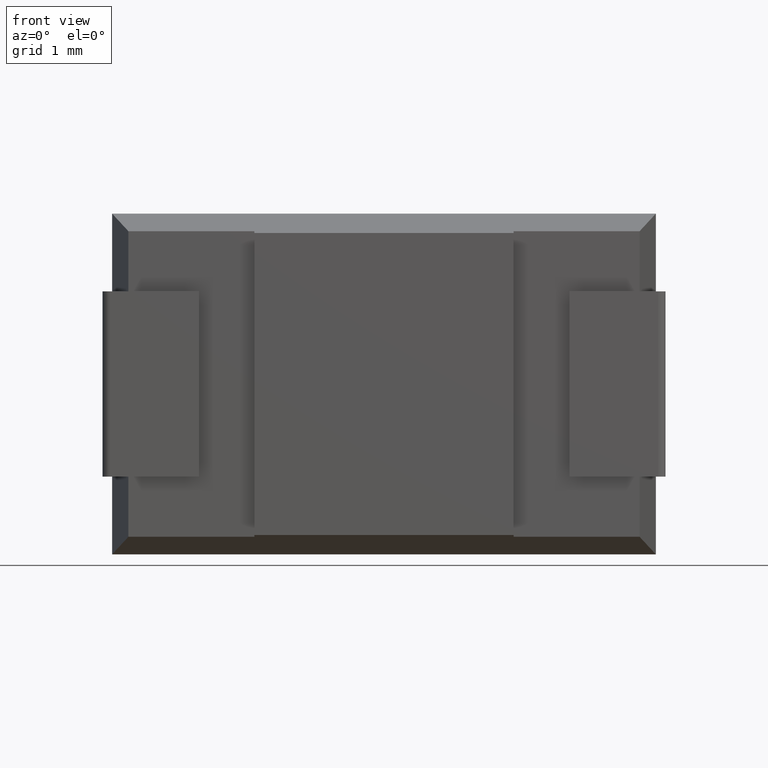
[diagram: clean part render]
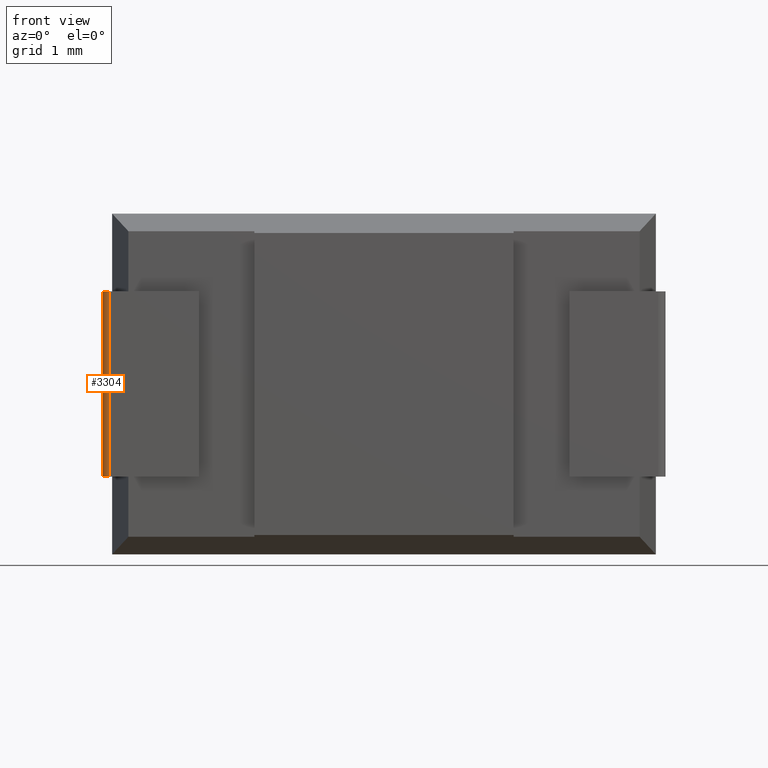
[diagram: same view with one face highlighted and labeled with its STEP entity id]
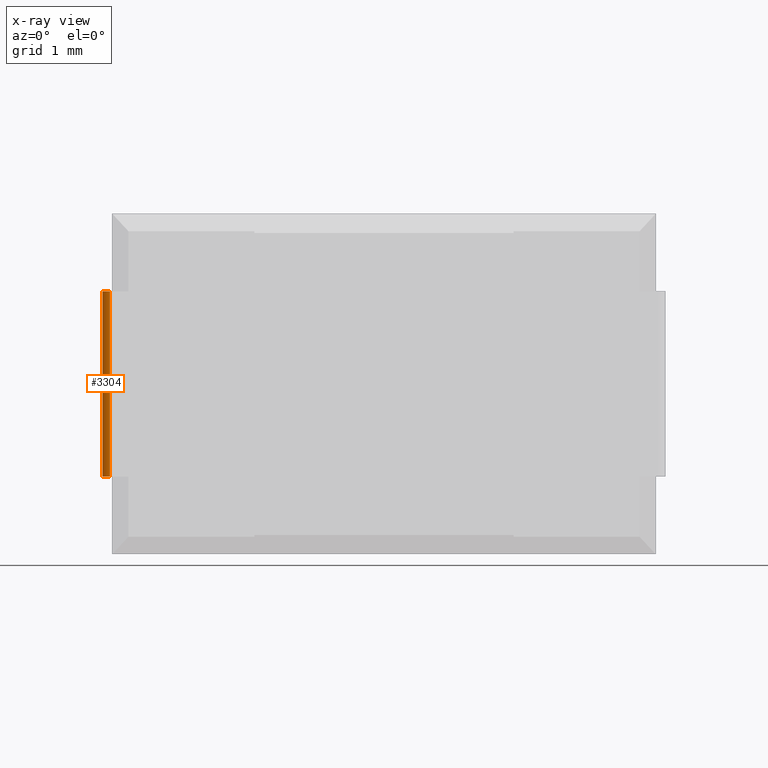
[diagram: x-ray of the same camera — body ghosted, the highlighted face saturated]
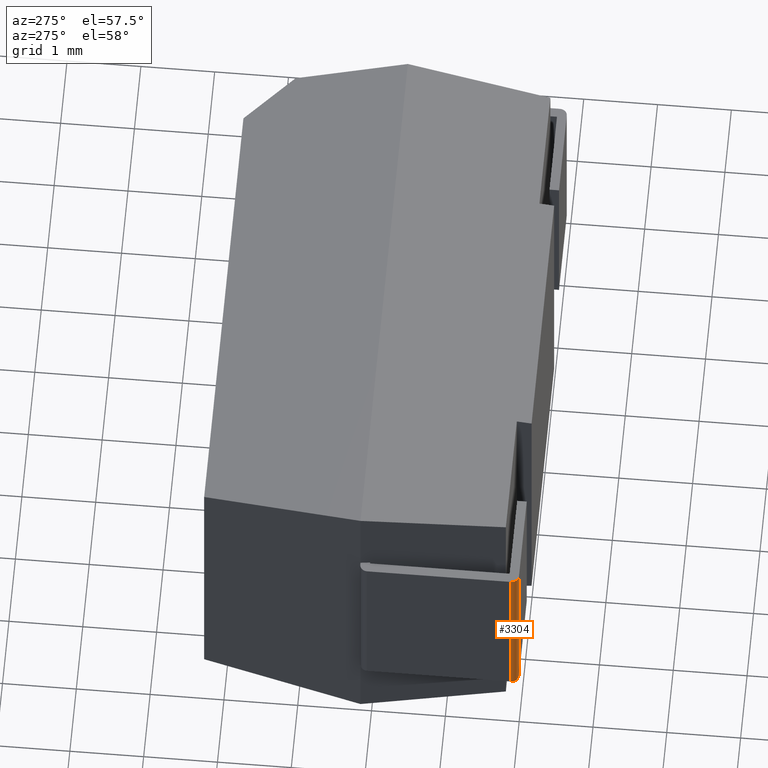
[diagram: same view with one face highlighted and labeled with its STEP entity id]
A machine part, front view. The second image highlights one B-rep face of the part: STEP entity #3304.
The next image is the same camera in x-ray: the body ghosted, the highlighted face saturated — about 0% of this face is hidden behind the body in this view.
A second angle (auxiliary view) of the same face is appended — the face is thin or edge-on in the first view.
In plain terms, the highlighted cylindrical surface (edge-blend (fillet) strip) has radius 0.1 mm, axis along (0, 0, -1).
Its self-contained STEP definition (entity closure, byte-faithful):
#3 = VERTEX_POINT ( 'NONE', #552 ) ;
#206 = VECTOR ( 'NONE', #2019, 1000.000000000000000 ) ;
#248 = DIRECTION ( 'NONE',  ( 0.000000000000000000, 0.000000000000000000, -1.000000000000000000 ) ) ;
#259 = EDGE_CURVE ( 'NONE', #2362, #3725, #2366, .T. ) ;
#284 = EDGE_LOOP ( 'NONE', ( #3554, #2536, #3196, #1512 ) ) ;
#302 = DIRECTION ( 'NONE',  ( 0.000000000000000000, 0.000000000000000000, -1.000000000000000000 ) ) ;
#336 = EDGE_CURVE ( 'NONE', #659, #3, #1726, .T. ) ;
#403 = AXIS2_PLACEMENT_3D ( 'NONE', #1685, #2276, #1091 ) ;
#495 = EDGE_CURVE ( 'NONE', #3725, #659, #1696, .T. ) ;
#552 = CARTESIAN_POINT ( 'NONE',  ( -0.02999999999999998501, 3.469446951953614189E-15, -3.549999999999999822 ) ) ;
#628 = CARTESIAN_POINT ( 'NONE',  ( -0.02999999999999998501, 3.469446951953614189E-15, 0.000000000000000000 ) ) ;
#630 = FACE_OUTER_BOUND ( 'NONE', #284, .T. ) ;
#659 = VERTEX_POINT ( 'NONE', #3395 ) ;
#847 = CARTESIAN_POINT ( 'NONE',  ( -0.1299999999999999767, 0.1000000000000032946, -1.049999999999999822 ) ) ;
#1091 = DIRECTION ( 'NONE',  ( 1.000000000000000000, 0.000000000000000000, 0.000000000000000000 ) ) ;
#1172 = CARTESIAN_POINT ( 'NONE',  ( -0.1299999999999999767, 0.1000000000000034750, 0.000000000000000000 ) ) ;
#1175 = CARTESIAN_POINT ( 'NONE',  ( -0.02999999999999998501, 0.1000000000000034750, 0.000000000000000000 ) ) ;
#1401 = CARTESIAN_POINT ( 'NONE',  ( -0.02999999999999998501, 0.1000000000000034750, -3.550000000000006928 ) ) ;
#1512 = ORIENTED_EDGE ( 'NONE', *, *, #336, .F. ) ;
#1558 = VECTOR ( 'NONE', #248, 1000.000000000000000 ) ;
#1676 = CIRCLE ( 'NONE', #2857, 0.1000000000000000056 ) ;
#1685 = CARTESIAN_POINT ( 'NONE',  ( -0.02999999999999998501, 0.1000000000000034750, -1.049999999999999822 ) ) ;
#1696 = CIRCLE ( 'NONE', #403, 0.1000000000000000056 ) ;
#1726 = LINE ( 'NONE', #628, #1558 ) ;
#2019 = DIRECTION ( 'NONE',  ( -0.000000000000000000, -0.000000000000000000, 1.000000000000000000 ) ) ;
#2179 = AXIS2_PLACEMENT_3D ( 'NONE', #1175, #302, #3530 ) ;
#2276 = DIRECTION ( 'NONE',  ( -0.000000000000000000, 0.000000000000000000, 1.000000000000000000 ) ) ;
#2362 = VERTEX_POINT ( 'NONE', #3034 ) ;
#2366 = LINE ( 'NONE', #1172, #206 ) ;
#2368 = CYLINDRICAL_SURFACE ( 'NONE', #2179, 0.1000000000000000056 ) ;
#2480 = EDGE_CURVE ( 'NONE', #3, #2362, #1676, .T. ) ;
#2536 = ORIENTED_EDGE ( 'NONE', *, *, #259, .F. ) ;
#2813 = DIRECTION ( 'NONE',  ( 0.000000000000000000, 3.336006684570784876E-15, -1.000000000000000000 ) ) ;
#2857 = AXIS2_PLACEMENT_3D ( 'NONE', #1401, #2813, #3424 ) ;
#3034 = CARTESIAN_POINT ( 'NONE',  ( -0.1299999999999999767, 0.1000000000000032946, -3.550000000000006928 ) ) ;
#3196 = ORIENTED_EDGE ( 'NONE', *, *, #2480, .F. ) ;
#3304 = ADVANCED_FACE ( 'NONE', ( #630 ), #2368, .T. ) ;
#3395 = CARTESIAN_POINT ( 'NONE',  ( -0.02999999999999998501, 3.469446951953614189E-15, -1.049999999999999822 ) ) ;
#3424 = DIRECTION ( 'NONE',  ( 0.000000000000000000, 1.000000000000000000, 4.336808689942017736E-15 ) ) ;
#3530 = DIRECTION ( 'NONE',  ( -1.000000000000000000, 0.000000000000000000, 0.000000000000000000 ) ) ;
#3554 = ORIENTED_EDGE ( 'NONE', *, *, #495, .F. ) ;
#3725 = VERTEX_POINT ( 'NONE', #847 ) ;